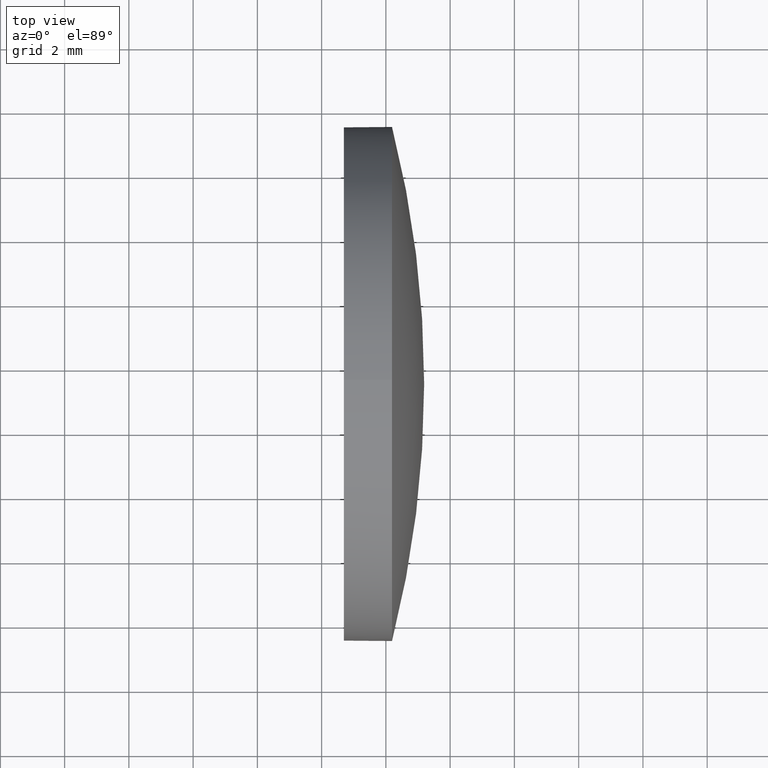
[diagram: clean part render]
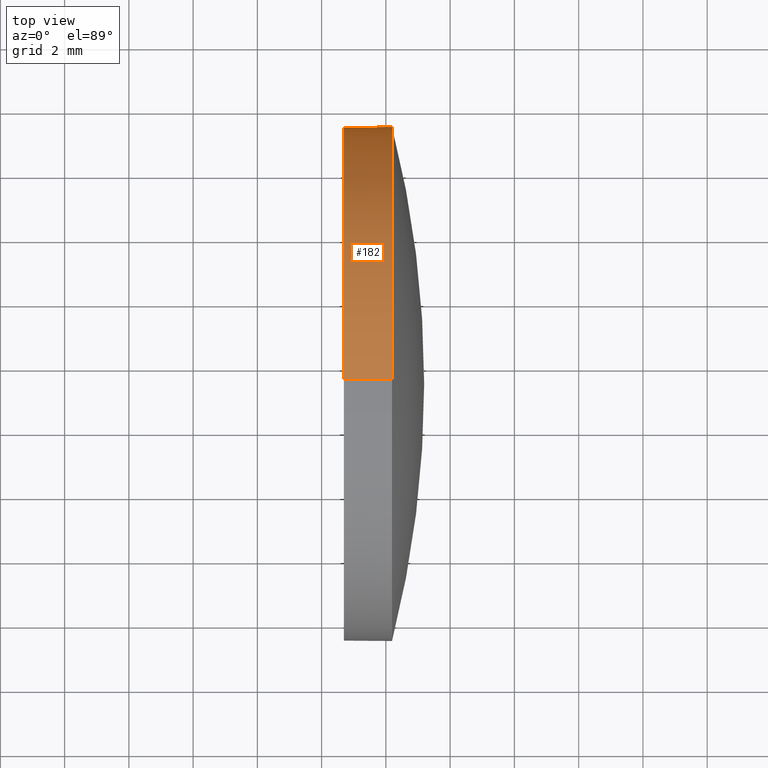
[diagram: same view with one face highlighted and labeled with its STEP entity id]
A machine part, top view. The second image highlights one B-rep face of the part: STEP entity #182.
In plain terms, the highlighted cylindrical surface (partial cylindrical patch) has radius 8 mm, axis along (-1, -0, -0).
Its self-contained STEP definition (entity closure, byte-faithful):
#1 = VERTEX_POINT ( 'NONE', #163 ) ;
#4 = VERTEX_POINT ( 'NONE', #40 ) ;
#8 = CIRCLE ( 'NONE', #178, 7.999999999999979600 ) ;
#12 = VERTEX_POINT ( 'NONE', #124 ) ;
#18 = EDGE_CURVE ( 'NONE', #1, #4, #48, .T. ) ;
#21 = CARTESIAN_POINT ( 'NONE',  ( 620.6910119577842100, 125.4531705715125000, 0.0000000000000000000 ) ) ;
#26 = DIRECTION ( 'NONE',  ( 0.0000000000000000000, 0.0000000000000000000, 1.000000000000000000 ) ) ;
#29 = CARTESIAN_POINT ( 'NONE',  ( 622.1910119577842100, 125.4531705715125000, 0.0000000000000000000 ) ) ;
#33 = EDGE_CURVE ( 'NONE', #1, #104, #129, .T. ) ;
#34 = DIRECTION ( 'NONE',  ( -1.000000000000000000, -0.0000000000000000000, -0.0000000000000000000 ) ) ;
#38 = DIRECTION ( 'NONE',  ( 0.0000000000000000000, 0.0000000000000000000, 1.000000000000000000 ) ) ;
#39 = ORIENTED_EDGE ( 'NONE', *, *, #180, .T. ) ;
#40 = CARTESIAN_POINT ( 'NONE',  ( 620.6910119577842100, 125.4531705715125000, 7.999999999999979600 ) ) ;
#44 = ORIENTED_EDGE ( 'NONE', *, *, #72, .F. ) ;
#48 = LINE ( 'NONE', #162, #145 ) ;
#53 = ORIENTED_EDGE ( 'NONE', *, *, #33, .T. ) ;
#60 = AXIS2_PLACEMENT_3D ( 'NONE', #89, #88, #125 ) ;
#63 = VERTEX_POINT ( 'NONE', #123 ) ;
#72 = EDGE_CURVE ( 'NONE', #4, #12, #77, .T. ) ;
#74 = DIRECTION ( 'NONE',  ( -1.000000000000000000, -0.0000000000000000000, -0.0000000000000000000 ) ) ;
#77 = CIRCLE ( 'NONE', #164, 7.999999999999979600 ) ;
#78 = EDGE_LOOP ( 'NONE', ( #176, #39, #44, #179, #53 ) ) ;
#85 = CARTESIAN_POINT ( 'NONE',  ( 622.1910119577842100, 133.4531705715125200, 0.0000000000000000000 ) ) ;
#88 = DIRECTION ( 'NONE',  ( -1.000000000000000000, -0.0000000000000000000, -0.0000000000000000000 ) ) ;
#89 = CARTESIAN_POINT ( 'NONE',  ( 616.9657433374219400, 125.4531705715125000, 0.0000000000000000000 ) ) ;
#93 = CYLINDRICAL_SURFACE ( 'NONE', #60, 7.999999999999979600 ) ;
#95 = EDGE_CURVE ( 'NONE', #104, #63, #8, .T. ) ;
#104 = VERTEX_POINT ( 'NONE', #85 ) ;
#108 = LINE ( 'NONE', #115, #142 ) ;
#110 = DIRECTION ( 'NONE',  ( -1.000000000000000000, -0.0000000000000000000, -0.0000000000000000000 ) ) ;
#111 = CARTESIAN_POINT ( 'NONE',  ( 622.1910119577842100, 125.4531705715125000, 0.0000000000000000000 ) ) ;
#115 = CARTESIAN_POINT ( 'NONE',  ( 616.9657433374219400, 125.4531705715125000, -7.999999999999979600 ) ) ;
#123 = CARTESIAN_POINT ( 'NONE',  ( 622.1910119577842100, 125.4531705715125000, -7.999999999999979600 ) ) ;
#124 = CARTESIAN_POINT ( 'NONE',  ( 620.6910119577842100, 125.4531705715125000, -7.999999999999979600 ) ) ;
#125 = DIRECTION ( 'NONE',  ( 0.0000000000000000000, 0.0000000000000000000, 1.000000000000000000 ) ) ;
#128 = DIRECTION ( 'NONE',  ( -1.000000000000000000, -0.0000000000000000000, -0.0000000000000000000 ) ) ;
#129 = CIRCLE ( 'NONE', #144, 7.999999999999979600 ) ;
#131 = DIRECTION ( 'NONE',  ( 0.0000000000000000000, 0.0000000000000000000, 1.000000000000000000 ) ) ;
#142 = VECTOR ( 'NONE', #74, 1000.000000000000000 ) ;
#144 = AXIS2_PLACEMENT_3D ( 'NONE', #111, #110, #38 ) ;
#145 = VECTOR ( 'NONE', #149, 1000.000000000000000 ) ;
#149 = DIRECTION ( 'NONE',  ( -1.000000000000000000, -0.0000000000000000000, -0.0000000000000000000 ) ) ;
#162 = CARTESIAN_POINT ( 'NONE',  ( 616.9657433374219400, 125.4531705715125000, 7.999999999999979600 ) ) ;
#163 = CARTESIAN_POINT ( 'NONE',  ( 622.1910119577842100, 125.4531705715125000, 7.999999999999979600 ) ) ;
#164 = AXIS2_PLACEMENT_3D ( 'NONE', #21, #34, #131 ) ;
#170 = FACE_OUTER_BOUND ( 'NONE', #78, .T. ) ;
#176 = ORIENTED_EDGE ( 'NONE', *, *, #95, .T. ) ;
#178 = AXIS2_PLACEMENT_3D ( 'NONE', #29, #128, #26 ) ;
#179 = ORIENTED_EDGE ( 'NONE', *, *, #18, .F. ) ;
#180 = EDGE_CURVE ( 'NONE', #63, #12, #108, .T. ) ;
#182 = ADVANCED_FACE ( 'NONE', ( #170 ), #93, .T. ) ;